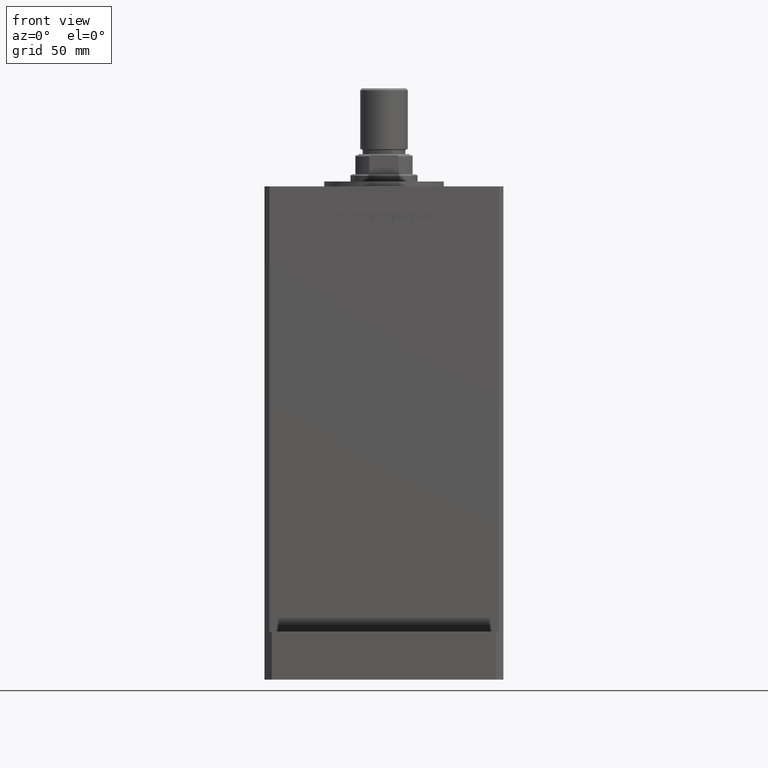
[diagram: clean part render]
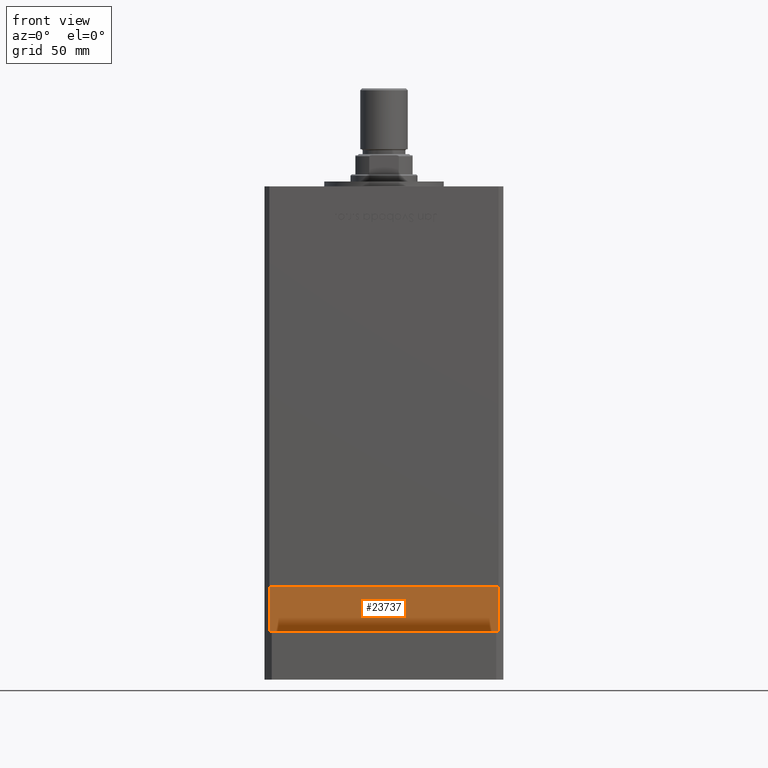
[diagram: same view with one face highlighted and labeled with its STEP entity id]
A machine part, front view. The second image highlights one B-rep face of the part: STEP entity #23737.
In plain terms, the highlighted planar face has unit normal (0, -1, -0).
Its self-contained STEP definition (entity closure, byte-faithful):
#703 = CARTESIAN_POINT ( 'NONE',  ( -47.99999999999999289, -43.50000000000001421, -19.00000000000000000 ) ) ;
#2697 = LINE ( 'NONE', #27607, #53273 ) ;
#3868 = CARTESIAN_POINT ( 'NONE',  ( 47.99999999999999289, -43.50000000000001421, -19.00000000000000000 ) ) ;
#5795 = DIRECTION ( 'NONE',  ( 0.000000000000000000, -1.000000000000000000, 0.000000000000000000 ) ) ;
#9629 = CARTESIAN_POINT ( 'NONE',  ( -47.99999999999999289, -43.50000000000001421, -19.00000000000000000 ) ) ;
#10286 = ORIENTED_EDGE ( 'NONE', *, *, #15234, .F. ) ;
#11808 = VECTOR ( 'NONE', #41390, 1000.000000000000000 ) ;
#11952 = AXIS2_PLACEMENT_3D ( 'NONE', #9629, #5795, #22483 ) ;
#13837 = CARTESIAN_POINT ( 'NONE',  ( -47.99999999999999289, -43.50000000000001421, 0.000000000000000000 ) ) ;
#14898 = CARTESIAN_POINT ( 'NONE',  ( 47.99999999999999289, -43.50000000000001421, -19.00000000000000000 ) ) ;
#15171 = DIRECTION ( 'NONE',  ( 0.000000000000000000, 0.000000000000000000, 1.000000000000000000 ) ) ;
#15234 = EDGE_CURVE ( 'NONE', #42679, #27006, #45502, .T. ) ;
#15944 = LINE ( 'NONE', #48029, #28827 ) ;
#16864 = ORIENTED_EDGE ( 'NONE', *, *, #44632, .T. ) ;
#18965 = DIRECTION ( 'NONE',  ( 1.000000000000000000, 0.000000000000000000, 0.000000000000000000 ) ) ;
#22483 = DIRECTION ( 'NONE',  ( 0.000000000000000000, -0.000000000000000000, -1.000000000000000000 ) ) ;
#23737 = ADVANCED_FACE ( 'NONE', ( #52080 ), #30444, .T. ) ;
#24680 = CARTESIAN_POINT ( 'NONE',  ( -47.99999999999999289, -43.50000000000001421, 0.000000000000000000 ) ) ;
#26491 = VERTEX_POINT ( 'NONE', #3868 ) ;
#27006 = VERTEX_POINT ( 'NONE', #36267 ) ;
#27607 = CARTESIAN_POINT ( 'NONE',  ( -47.99999999999999289, -43.50000000000001421, -19.00000000000000000 ) ) ;
#28827 = VECTOR ( 'NONE', #18965, 1000.000000000000000 ) ;
#30444 = PLANE ( 'NONE',  #11952 ) ;
#34510 = EDGE_LOOP ( 'NONE', ( #10286, #42196, #35684, #16864 ) ) ;
#35684 = ORIENTED_EDGE ( 'NONE', *, *, #50393, .T. ) ;
#36267 = CARTESIAN_POINT ( 'NONE',  ( 47.99999999999999289, -43.50000000000001421, 0.000000000000000000 ) ) ;
#39153 = VECTOR ( 'NONE', #15171, 1000.000000000000000 ) ;
#39538 = VERTEX_POINT ( 'NONE', #703 ) ;
#40374 = LINE ( 'NONE', #14898, #39153 ) ;
#41390 = DIRECTION ( 'NONE',  ( 1.000000000000000000, 0.000000000000000000, 0.000000000000000000 ) ) ;
#42196 = ORIENTED_EDGE ( 'NONE', *, *, #48477, .F. ) ;
#42679 = VERTEX_POINT ( 'NONE', #13837 ) ;
#44632 = EDGE_CURVE ( 'NONE', #26491, #27006, #40374, .T. ) ;
#45502 = LINE ( 'NONE', #24680, #11808 ) ;
#47905 = DIRECTION ( 'NONE',  ( 0.000000000000000000, 0.000000000000000000, 1.000000000000000000 ) ) ;
#48029 = CARTESIAN_POINT ( 'NONE',  ( -47.99999999999999289, -43.50000000000001421, -19.00000000000000000 ) ) ;
#48477 = EDGE_CURVE ( 'NONE', #39538, #42679, #2697, .T. ) ;
#50393 = EDGE_CURVE ( 'NONE', #39538, #26491, #15944, .T. ) ;
#52080 = FACE_OUTER_BOUND ( 'NONE', #34510, .T. ) ;
#53273 = VECTOR ( 'NONE', #47905, 1000.000000000000000 ) ;